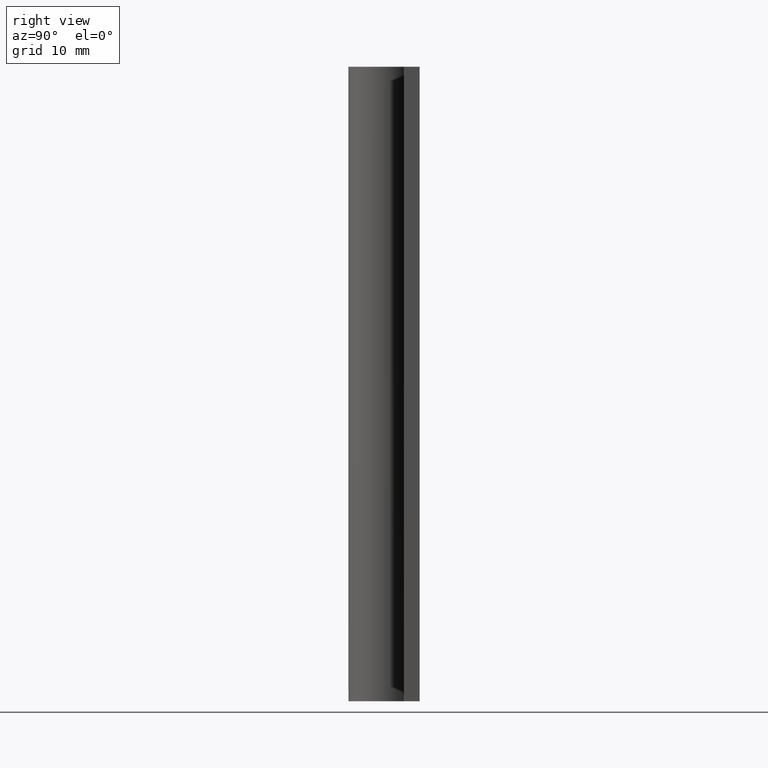
[diagram: clean part render]
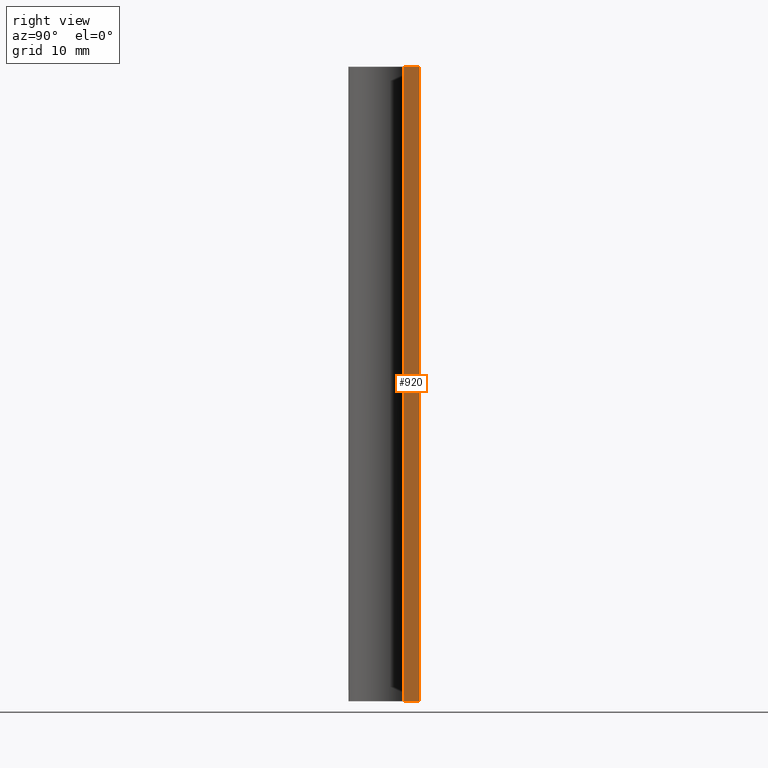
[diagram: same view with one face highlighted and labeled with its STEP entity id]
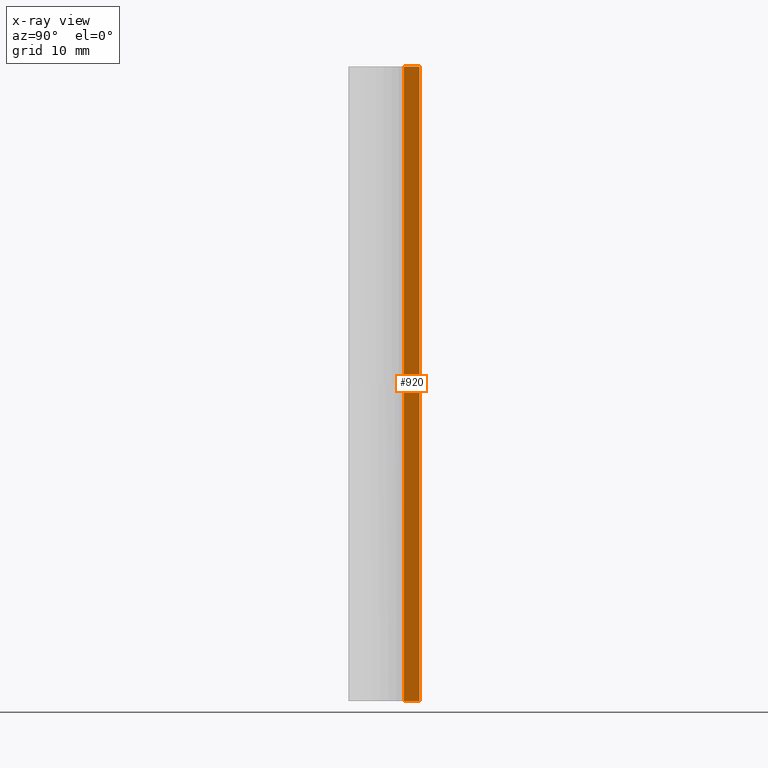
[diagram: x-ray of the same camera — body ghosted, the highlighted face saturated]
A machine part, right view. The second image highlights one B-rep face of the part: STEP entity #920.
The next image is the same camera in x-ray: the body ghosted, the highlighted face saturated — about 0% of this face is hidden behind the body in this view.
In plain terms, the highlighted face is a freeform B-spline surface patch.
Its self-contained STEP definition (entity closure, byte-faithful):
#871=CARTESIAN_POINT('',(18.0,3.599998000000000,0.0));
#872=VERTEX_POINT('',#871);
#878=CARTESIAN_POINT('',(18.0,2.0,0.0));
#879=VERTEX_POINT('',#878);
#880=CARTESIAN_POINT('',(18.0,2.0,0.0));
#881=CARTESIAN_POINT('',(18.0,3.599998000000000,0.0));
#882=QUASI_UNIFORM_CURVE('',1,(#880,#881),.UNSPECIFIED.,.F.,.U.);
#883=EDGE_CURVE('',#879,#872,#882,.T.);
#893=CARTESIAN_POINT('',(18.0,1.920080103001107,67.196808275555668));
#894=CARTESIAN_POINT('',(18.0,1.920080103001107,-3.196801992169553));
#895=CARTESIAN_POINT('',(18.0,3.679917939914185,67.196808275555668));
#896=CARTESIAN_POINT('',(18.0,3.679917939914185,-3.196801992169553));
#897=B_SPLINE_SURFACE_WITH_KNOTS('',1,1,((#893,#895),(#894,#896)),.UNSPECIFIED.,.F.,.F.,.U.,(2,2),(2,2),(0.0,70.393610267725222),(0.041708334948495,0.958291687403247),.UNSPECIFIED.);
#898=CARTESIAN_POINT('',(18.0,2.0,64.000008000000093));
#899=VERTEX_POINT('',#898);
#900=CARTESIAN_POINT('',(18.0,3.599998000000000,64.000008000000093));
#901=VERTEX_POINT('',#900);
#902=CARTESIAN_POINT('',(18.0,2.0,64.000008000000093));
#903=CARTESIAN_POINT('',(18.0,3.599998000000000,64.000008000000093));
#904=QUASI_UNIFORM_CURVE('',1,(#902,#903),.UNSPECIFIED.,.F.,.U.);
#905=EDGE_CURVE('',#899,#901,#904,.T.);
#906=ORIENTED_EDGE('',*,*,#905,.F.);
#907=CARTESIAN_POINT('',(18.0,2.0,0.0));
#908=CARTESIAN_POINT('',(18.0,2.0,64.000008000000093));
#909=QUASI_UNIFORM_CURVE('',1,(#907,#908),.UNSPECIFIED.,.F.,.U.);
#910=EDGE_CURVE('',#879,#899,#909,.T.);
#911=ORIENTED_EDGE('',*,*,#910,.F.);
#912=ORIENTED_EDGE('',*,*,#883,.T.);
#913=CARTESIAN_POINT('',(18.0,3.599998000000000,0.0));
#914=CARTESIAN_POINT('',(18.0,3.599998000000000,64.000008000000093));
#915=QUASI_UNIFORM_CURVE('',1,(#913,#914),.UNSPECIFIED.,.F.,.U.);
#916=EDGE_CURVE('',#872,#901,#915,.T.);
#917=ORIENTED_EDGE('',*,*,#916,.T.);
#918=EDGE_LOOP('',(#906,#911,#912,#917));
#919=FACE_OUTER_BOUND('',#918,.T.);
#920=ADVANCED_FACE('',(#919),#897,.T.);